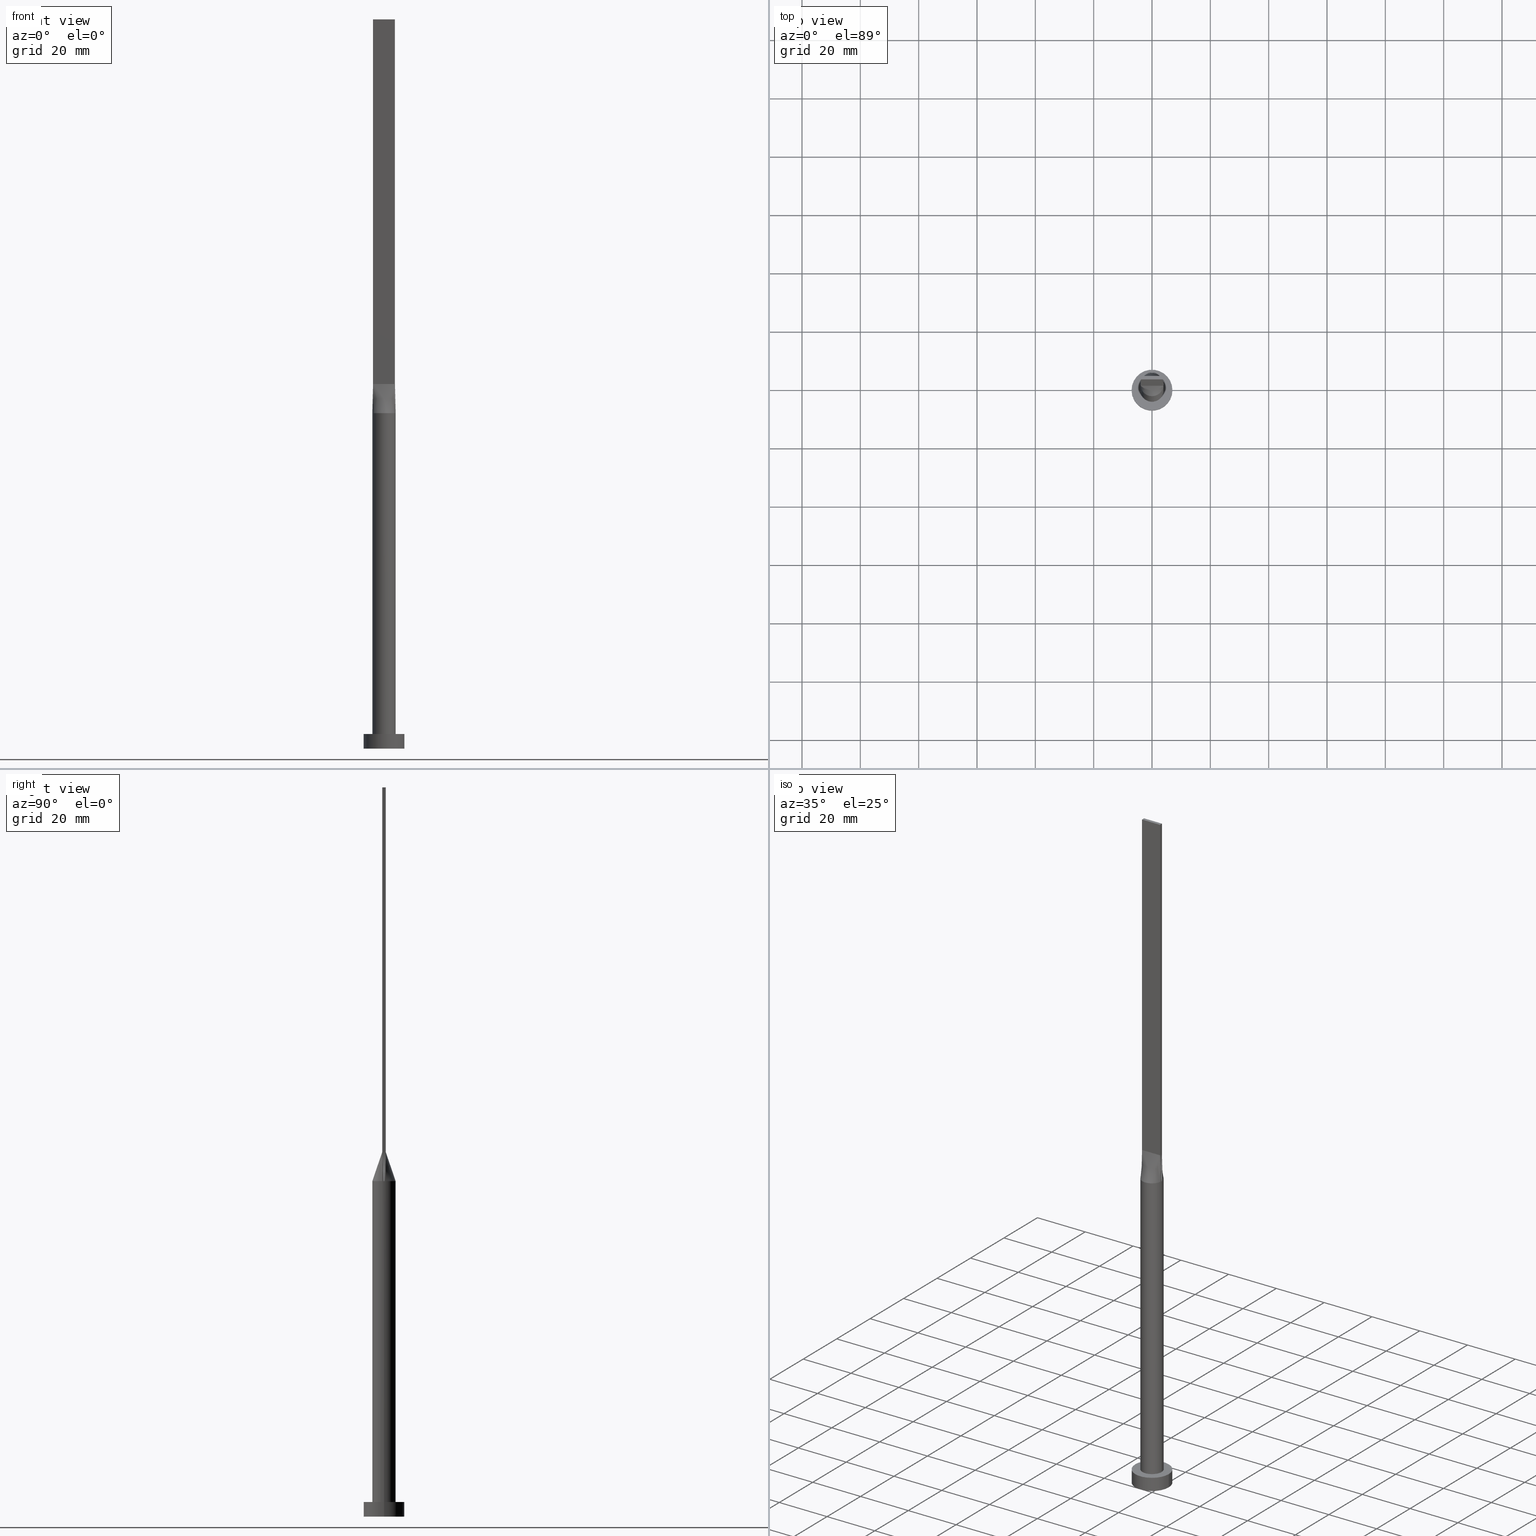
[diagram: canonical four-view strip — front | top / right | iso, engineering-drawing reading convention]
A machine part, canonical four-view strip (front | top / right | iso — engineering-drawing reading convention). The complete STEP part file that produces these views, byte-faithful:
ISO-10303-21;
HEADER;
FILE_DESCRIPTION (( 'STEP AP203' ),
    '1' );
FILE_NAME ('1744.STEP',
    '2023-02-13T10:46:32',
    ( '' ),
    ( '' ),
    'SwSTEP 2.0',
    'SolidWorks 2019',
    '' );
FILE_SCHEMA (( 'CONFIG_CONTROL_DESIGN' ));
ENDSEC;

DATA;
#1 = CARTESIAN_POINT ( 'NONE',  ( -3.999842262273348048, -9.740943882706926662E-16, 115.0000000000000000 ) ) ;
#2 = CARTESIAN_POINT ( 'NONE',  ( -3.219262664220059023, -2.422342486356523050, 115.0000000000000142 ) ) ;
#3 = APPROVAL ( #277, 'NEUR�EN�' ) ;
#4 = DIRECTION ( 'NONE',  ( 0.000000000000000000, 1.000000000000000000, 0.000000000000000000 ) ) ;
#5 = APPLICATION_PROTOCOL_DEFINITION ( 'international standard', 'config_control_design', 1994, #491 ) ;
#6 = VERTEX_POINT ( 'NONE', #538 ) ;
#7 = CARTESIAN_POINT ( 'NONE',  ( 3.949762527666821565, 0.6319620044266899273, 115.0000000000000000 ) ) ;
#8 = VECTOR ( 'NONE', #413, 1000.000000000000000 ) ;
#9 = CC_DESIGN_SECURITY_CLASSIFICATION ( #406, ( #177 ) ) ;
#10 = CARTESIAN_POINT ( 'NONE',  ( -2.127794970397209884, 3.430476893735948440, 115.0000000000000000 ) ) ;
#11 = DATE_AND_TIME ( #240, #157 ) ;
#12 = ADVANCED_FACE ( 'NONE', ( #232 ), #324, .F. ) ;
#13 = PLANE ( 'NONE',  #309 ) ;
#14 = CARTESIAN_POINT ( 'NONE',  ( -3.219262664220059023, 2.422342486356523938, 115.0000000000000000 ) ) ;
#15 = ADVANCED_FACE ( 'NONE', ( #188 ), #13, .T. ) ;
#16 = EDGE_CURVE ( 'NONE', #171, #32, #221, .T. ) ;
#17 = CARTESIAN_POINT ( 'NONE',  ( -3.949762527666821565, 0.6319620044266903713, 115.0000000000000000 ) ) ;
#18 = DIRECTION ( 'NONE',  ( 0.000000000000000000, 0.000000000000000000, 1.000000000000000000 ) ) ;
#19 = LINE ( 'NONE', #476, #260 ) ;
#20 = CARTESIAN_POINT ( 'NONE',  ( 3.750000000000000000, 0.6000000000000001998, 250.0000000000000000 ) ) ;
#21 = DIRECTION ( 'NONE',  ( 0.000000000000000000, 0.000000000000000000, 1.000000000000000000 ) ) ;
#22 = CARTESIAN_POINT ( 'NONE',  ( -7.000000000000000000, 0.000000000000000000, 5.000000000000000000 ) ) ;
#23 = CARTESIAN_POINT ( 'NONE',  ( 3.849881263833410561, 0.6159810022133449525, 120.0000000000000000 ) ) ;
#24 = VERTEX_POINT ( 'NONE', #497 ) ;
#25 = LOCAL_TIME ( 11, 46, 32.00000000000000000, #111 ) ;
#26 = DIRECTION ( 'NONE',  ( 1.000000000000000000, 0.000000000000000000, 0.000000000000000000 ) ) ;
#27 = DATE_AND_TIME ( #74, #112 ) ;
#28 = DIRECTION ( 'NONE',  ( -0.000000000000000000, 0.000000000000000000, -1.000000000000000000 ) ) ;
#29 = B_SPLINE_SURFACE_WITH_KNOTS ( 'NONE', 3, 1, ( 
 ( #396, #424 ),
 ( #568, #155 ),
 ( #248, #245 ),
 ( #473, #468 ),
 ( #427, #511 ),
 ( #195, #429 ) ),
 .UNSPECIFIED., .F., .F., .F.,
 ( 4, 2, 4 ),
 ( 2, 2 ),
 ( 0.000000000000000000, 0.5000000000000000000, 1.000000000000000000 ),
 ( 0.000000000000000000, 1.000000000000000000 ),
 .UNSPECIFIED. ) ;
#30 = CARTESIAN_POINT ( 'NONE',  ( 0.5684794080625145130, 4.000000000000000000, 114.9999999999999858 ) ) ;
#31 = CARTESIAN_POINT ( 'NONE',  ( 0.000000000000000000, 0.000000000000000000, 5.000000000000000000 ) ) ;
#32 = VERTEX_POINT ( 'NONE', #92 ) ;
#33 = DIRECTION ( 'NONE',  ( 0.000000000000000000, 0.000000000000000000, 1.000000000000000000 ) ) ;
#34 = ORIENTED_EDGE ( 'NONE', *, *, #311, .F. ) ;
#35 = LOCAL_TIME ( 11, 46, 32.00000000000000000, #369 ) ;
#36 = ORIENTED_EDGE ( 'NONE', *, *, #535, .T. ) ;
#37 = EDGE_LOOP ( 'NONE', ( #493, #36, #330, #77 ) ) ;
#38 = CARTESIAN_POINT ( 'NONE',  ( -3.800365609718892923, -1.311488165564685726, 115.0000000000000000 ) ) ;
#39 = ORIENTED_EDGE ( 'NONE', *, *, #204, .T. ) ;
#40 = CARTESIAN_POINT ( 'NONE',  ( 4.000000000000000000, 4.898587196589412829E-16, 115.0000000000000000 ) ) ;
#41 = VECTOR ( 'NONE', #318, 1000.000000000000000 ) ;
#42 = FACE_OUTER_BOUND ( 'NONE', #411, .T. ) ;
#43 = AXIS2_PLACEMENT_3D ( 'NONE', #426, #18, #161 ) ;
#44 = ORIENTED_EDGE ( 'NONE', *, *, #198, .F. ) ;
#45 = EDGE_LOOP ( 'NONE', ( #113, #432, #579, #398 ) ) ;
#46 = CARTESIAN_POINT ( 'NONE',  ( -1.249999999999997558, -0.5999999999999994227, 125.0000000000000000 ) ) ;
#47 = CARTESIAN_POINT ( 'NONE',  ( -3.750000000000000000, 0.6000000000000001998, 125.0000000000000000 ) ) ;
#48 = CARTESIAN_POINT ( 'NONE',  ( 3.999684524546696540, -0.2119768420469393122, 115.0000000000000000 ) ) ;
#49 = CARTESIAN_POINT ( 'NONE',  ( 3.749999999999999556, -0.4000000000000017986, 125.0000000000000000 ) ) ;
#50 = ORIENTED_EDGE ( 'NONE', *, *, #329, .F. ) ;
#51 = CARTESIAN_POINT ( 'NONE',  ( -0.5684794080625158452, 3.999999999999999112, 115.0000000000000000 ) ) ;
#52 = PERSON_AND_ORGANIZATION ( #559, #519 ) ;
#53 = AXIS2_PLACEMENT_3D ( 'NONE', #390, #121, #72 ) ;
#54 = CARTESIAN_POINT ( 'NONE',  ( 3.437499999999999556, 0.6000000000000001998, 125.0000000000000000 ) ) ;
#55 = PERSON_AND_ORGANIZATION ( #559, #519 ) ;
#56 = EDGE_CURVE ( 'NONE', #543, #173, #270, .T. ) ;
#57 = EDGE_CURVE ( 'NONE', #24, #543, #98, .T. ) ;
#58 = CARTESIAN_POINT ( 'NONE',  ( -3.750000000000000000, 0.6000000000000001998, 125.0000000000000000 ) ) ;
#59 = CARTESIAN_POINT ( 'NONE',  ( -0.6249999999999978906, -0.5999999999999994227, 125.0000000000000000 ) ) ;
#60 = ORIENTED_EDGE ( 'NONE', *, *, #436, .T. ) ;
#61 = LINE ( 'NONE', #385, #574 ) ;
#62 = DIRECTION ( 'NONE',  ( -1.000000000000000000, 0.000000000000000000, 0.000000000000000000 ) ) ;
#63 = CARTESIAN_POINT ( 'NONE',  ( 3.750000000000000000, -0.5999999999999997558, 125.0000000000000000 ) ) ;
#64 = AXIS2_PLACEMENT_3D ( 'NONE', #189, #372, #553 ) ;
#65 = EDGE_CURVE ( 'NONE', #237, #145, #19, .T. ) ;
#66 = CARTESIAN_POINT ( 'NONE',  ( 3.897760447583618948, 0.9569750049467118380, 115.0000000000000000 ) ) ;
#67 = FACE_OUTER_BOUND ( 'NONE', #355, .T. ) ;
#68 = DIRECTION ( 'NONE',  ( 0.000000000000000000, -1.000000000000000000, 0.000000000000000000 ) ) ;
#69 = ORIENTED_EDGE ( 'NONE', *, *, #56, .T. ) ;
#70 = CARTESIAN_POINT ( 'NONE',  ( 3.999842262273348936, 9.852009208038395466E-16, 115.0000000000000000 ) ) ;
#71 = PERSON_AND_ORGANIZATION ( #559, #519 ) ;
#72 = DIRECTION ( 'NONE',  ( -1.000000000000000000, 0.000000000000000000, 0.000000000000000000 ) ) ;
#73 = EDGE_LOOP ( 'NONE', ( #374, #34, #545, #228 ) ) ;
#74 = CALENDAR_DATE ( 2023, 13, 2 ) ;
#75 = ADVANCED_FACE ( 'NONE', ( #159 ), #298, .F. ) ;
#76 = CARTESIAN_POINT ( 'NONE',  ( -3.750000000000000000, 0.6000000000000001998, 250.0000000000000000 ) ) ;
#77 = ORIENTED_EDGE ( 'NONE', *, *, #117, .T. ) ;
#78 = ORIENTED_EDGE ( 'NONE', *, *, #321, .F. ) ;
#79 = AXIS2_PLACEMENT_3D ( 'NONE', #356, #125, #488 ) ;
#80 = CARTESIAN_POINT ( 'NONE',  ( -1.134810363096319996, 3.874001625491799938, 115.0000000000000284 ) ) ;
#81 = VERTEX_POINT ( 'NONE', #433 ) ;
#82 = CARTESIAN_POINT ( 'NONE',  ( 0.000000000000000000, 0.000000000000000000, 115.0000000000000000 ) ) ;
#83 = DESIGN_CONTEXT ( 'detailed design', #491, 'design' ) ;
#84 = CARTESIAN_POINT ( 'NONE',  ( 0.000000000000000000, 0.000000000000000000, 115.0000000000000000 ) ) ;
#85 = AXIS2_PLACEMENT_3D ( 'NONE', #107, #288, #62 ) ;
#86 = EDGE_LOOP ( 'NONE', ( #69, #44, #366, #60 ) ) ;
#87 = VERTEX_POINT ( 'NONE', #285 ) ;
#88 = CARTESIAN_POINT ( 'NONE',  ( -3.750000000000000000, -0.5999999999999993117, 250.0000000000000000 ) ) ;
#89 = LINE ( 'NONE', #180, #393 ) ;
#90 =( NAMED_UNIT ( * ) PLANE_ANGLE_UNIT ( ) SI_UNIT ( $, .RADIAN. ) );
#91 = FACE_OUTER_BOUND ( 'NONE', #37, .T. ) ;
#92 = CARTESIAN_POINT ( 'NONE',  ( 3.750000000000000000, -0.5999999999999997558, 250.0000000000000000 ) ) ;
#93 = LINE ( 'NONE', #280, #122 ) ;
#94 = CIRCLE ( 'NONE', #79, 4.000000000000000000 ) ;
#95 = ORIENTED_EDGE ( 'NONE', *, *, #412, .T. ) ;
#96 = CARTESIAN_POINT ( 'NONE',  ( 2.553164211252348270, -3.116528153703943094, 114.9999999999999858 ) ) ;
#97 = CARTESIAN_POINT ( 'NONE',  ( 3.750000000000000000, -0.5999999999999997558, 125.0000000000000000 ) ) ;
#98 = LINE ( 'NONE', #337, #269 ) ;
#99 = CARTESIAN_POINT ( 'NONE',  ( 3.750000000000000000, -0.5999999999999997558, 125.0000000000000000 ) ) ;
#100 = PERSON_AND_ORGANIZATION ( #559, #519 ) ;
#101 = CARTESIAN_POINT ( 'NONE',  ( 0.3124999999999990563, 0.6000000000000000888, 125.0000000000000000 ) ) ;
#102 = CARTESIAN_POINT ( 'NONE',  ( -1.562499999999999556, 0.6000000000000000888, 125.0000000000000000 ) ) ;
#103 = DATE_AND_TIME ( #554, #261 ) ;
#104 = DIRECTION ( 'NONE',  ( 1.000000000000000000, 0.000000000000000000, -0.000000000000000000 ) ) ;
#105 = DIRECTION ( 'NONE',  ( -0.000000000000000000, -0.000000000000000000, -1.000000000000000000 ) ) ;
#106 = CARTESIAN_POINT ( 'NONE',  ( 3.461914487322979017, 2.043998057340944197, 114.9999999999999716 ) ) ;
#107 = CARTESIAN_POINT ( 'NONE',  ( 0.000000000000000000, 0.000000000000000000, 5.000000000000000000 ) ) ;
#108 = DATE_AND_TIME ( #515, #25 ) ;
#109 = EDGE_CURVE ( 'NONE', #128, #81, #254, .T. ) ;
#110 = DIRECTION ( 'NONE',  ( 0.000000000000000000, 0.000000000000000000, 1.000000000000000000 ) ) ;
#111 = COORDINATED_UNIVERSAL_TIME_OFFSET ( 1, 0, .AHEAD. ) ;
#112 = LOCAL_TIME ( 11, 46, 32.00000000000000000, #522 ) ;
#113 = ORIENTED_EDGE ( 'NONE', *, *, #212, .T. ) ;
#114 = CARTESIAN_POINT ( 'NONE',  ( 2.553164211252348714, 3.116528153703943538, 115.0000000000000000 ) ) ;
#115 = CYLINDRICAL_SURFACE ( 'NONE', #53, 4.000000000000000000 ) ;
#116 = EDGE_LOOP ( 'NONE', ( #531, #206, #453, #446 ) ) ;
#117 = EDGE_CURVE ( 'NONE', #173, #87, #61, .T. ) ;
#118 = CARTESIAN_POINT ( 'NONE',  ( 2.127794970397208107, 3.430476893735948885, 114.9999999999999858 ) ) ;
#119 = CARTESIAN_POINT ( 'NONE',  ( 3.950116941581656604, -0.6320178829360038053, 115.0000000000000000 ) ) ;
#120 = CC_DESIGN_PERSON_AND_ORGANIZATION_ASSIGNMENT ( #52, #417, ( #484 ) ) ;
#121 = DIRECTION ( 'NONE',  ( -0.000000000000000000, -0.000000000000000000, -1.000000000000000000 ) ) ;
#122 = VECTOR ( 'NONE', #328, 1000.000000000000000 ) ;
#123 = AXIS2_PLACEMENT_3D ( 'NONE', #84, #490, #575 ) ;
#124 = ORIENTED_EDGE ( 'NONE', *, *, #168, .F. ) ;
#125 = DIRECTION ( 'NONE',  ( 0.000000000000000000, 0.000000000000000000, 1.000000000000000000 ) ) ;
#126 = EDGE_LOOP ( 'NONE', ( #213, #226, #273, #39 ) ) ;
#127 = MECHANICAL_CONTEXT ( 'NONE', #308, 'mechanical' ) ;
#128 = VERTEX_POINT ( 'NONE', #70 ) ;
#129 = CARTESIAN_POINT ( 'NONE',  ( 0.000000000000000000, 0.000000000000000000, 0.000000000000000000 ) ) ;
#130 = ADVANCED_FACE ( 'NONE', ( #341 ), #201, .F. ) ;
#131 = ORIENTED_EDGE ( 'NONE', *, *, #535, .F. ) ;
#132 = ADVANCED_FACE ( 'NONE', ( #420 ), #29, .T. ) ;
#133 = CARTESIAN_POINT ( 'NONE',  ( 7.000000000000000000, 8.572527594031473190E-16, 0.000000000000000000 ) ) ;
#134 = CARTESIAN_POINT ( 'NONE',  ( -3.750000000000000000, -0.5999999999999993117, 250.0000000000000000 ) ) ;
#135 = CARTESIAN_POINT ( 'NONE',  ( 3.800365609718893367, 1.311488165564687058, 115.0000000000000142 ) ) ;
#136 = PERSON_AND_ORGANIZATION ( #559, #519 ) ;
#137 = ORIENTED_EDGE ( 'NONE', *, *, #200, .F. ) ;
#138 = CARTESIAN_POINT ( 'NONE',  ( -3.124999999999999112, -0.5999999999999993117, 125.0000000000000000 ) ) ;
#139 = VECTOR ( 'NONE', #306, 1000.000000000000000 ) ;
#140 = CARTESIAN_POINT ( 'NONE',  ( 3.983043858920071845, -0.4239536840938781248, 115.0000000000000000 ) ) ;
#141 = CARTESIAN_POINT ( 'NONE',  ( 0.5684794080625145130, 4.000000000000000000, 114.9999999999999858 ) ) ;
#142 = PRODUCT_RELATED_PRODUCT_CATEGORY ( 'detail', '', ( #484 ) ) ;
#143 = ORIENTED_EDGE ( 'NONE', *, *, #109, .T. ) ;
#144 = CARTESIAN_POINT ( 'NONE',  ( 1.562499999999999556, 0.6000000000000000888, 125.0000000000000000 ) ) ;
#145 = VERTEX_POINT ( 'NONE', #344 ) ;
#146 = LINE ( 'NONE', #292, #147 ) ;
#147 = VECTOR ( 'NONE', #477, 1000.000000000000000 ) ;
#148 = CARTESIAN_POINT ( 'NONE',  ( -3.750000000000000000, -0.5999999999999993117, 250.0000000000000000 ) ) ;
#149 = APPROVAL_STATUS ( 'not_yet_approved' ) ;
#150 = EDGE_LOOP ( 'NONE', ( #50, #305, #263, #343 ) ) ;
#151 = CARTESIAN_POINT ( 'NONE',  ( 0.000000000000000000, 0.000000000000000000, 115.0000000000000000 ) ) ;
#152 = DIRECTION ( 'NONE',  ( -0.000000000000000000, -0.000000000000000000, -1.000000000000000000 ) ) ;
#153 = LINE ( 'NONE', #431, #323 ) ;
#154 = ORIENTED_EDGE ( 'NONE', *, *, #495, .F. ) ;
#155 = CARTESIAN_POINT ( 'NONE',  ( -3.749999999999999556, 0.3999999999999998557, 125.0000000000000000 ) ) ;
#156 = DIRECTION ( 'NONE',  ( 0.000000000000000000, -0.000000000000000000, -1.000000000000000000 ) ) ;
#157 = LOCAL_TIME ( 11, 46, 32.00000000000000000, #382 ) ;
#158 = EDGE_LOOP ( 'NONE', ( #316, #295, #440, #290, #310 ) ) ;
#159 = FACE_OUTER_BOUND ( 'NONE', #578, .T. ) ;
#160 = PERSON_AND_ORGANIZATION ( #559, #519 ) ;
#161 = DIRECTION ( 'NONE',  ( 1.000000000000000000, 0.000000000000000000, 0.000000000000000000 ) ) ;
#162 = ORIENTED_EDGE ( 'NONE', *, *, #504, .F. ) ;
#163 = CARTESIAN_POINT ( 'NONE',  ( 0.000000000000000000, 0.000000000000000000, 0.000000000000000000 ) ) ;
#164 = CARTESIAN_POINT ( 'NONE',  ( -4.000000000000000000, 0.000000000000000000, 115.0000000000000000 ) ) ;
#165 = APPROVAL_ROLE ( '' ) ;
#166 = ORIENTED_EDGE ( 'NONE', *, *, #353, .F. ) ;
#167 = VERTEX_POINT ( 'NONE', #190 ) ;
#168 = EDGE_CURVE ( 'NONE', #6, #167, #231, .T. ) ;
#169 = ORIENTED_EDGE ( 'NONE', *, *, #264, .F. ) ;
#170 = AXIS2_PLACEMENT_3D ( 'NONE', #76, #435, #28 ) ;
#171 = VERTEX_POINT ( 'NONE', #148 ) ;
#172 = DIRECTION ( 'NONE',  ( 1.000000000000000000, 0.000000000000000000, 0.000000000000000000 ) ) ;
#173 = VERTEX_POINT ( 'NONE', #388 ) ;
#174 = EDGE_CURVE ( 'NONE', #81, #24, #362, .T. ) ;
#175 = CARTESIAN_POINT ( 'NONE',  ( -3.437499999999999556, -0.5999999999999993117, 125.0000000000000000 ) ) ;
#176 = VECTOR ( 'NONE', #503, 1000.000000000000000 ) ;
#177 = PRODUCT_DEFINITION_FORMATION_WITH_SPECIFIED_SOURCE ( 'LIBOVOLN�', '', #484, .NOT_KNOWN. ) ;
#178 = VERTEX_POINT ( 'NONE', #1 ) ;
#179 = CARTESIAN_POINT ( 'NONE',  ( -3.750000000000000000, 0.6000000000000001998, 250.0000000000000000 ) ) ;
#180 = CARTESIAN_POINT ( 'NONE',  ( 3.750000000000000000, -0.5999999999999997558, 250.0000000000000000 ) ) ;
#181 = LINE ( 'NONE', #368, #176 ) ;
#182 = DATE_TIME_ROLE ( 'creation_date' ) ;
#183 = CC_DESIGN_APPROVAL ( #334, ( #406 ) ) ;
#184 = CARTESIAN_POINT ( 'NONE',  ( 2.127794970397208107, 3.430476893735948885, 114.9999999999999858 ) ) ;
#185 = CARTESIAN_POINT ( 'NONE',  ( 2.553164211252348714, 3.116528153703943538, 115.0000000000000000 ) ) ;
#186 = PERSON_AND_ORGANIZATION_ROLE ( 'creator' ) ;
#187 = CARTESIAN_POINT ( 'NONE',  ( -3.949762527666821565, -0.6319620044266894832, 115.0000000000000000 ) ) ;
#188 = FACE_OUTER_BOUND ( 'NONE', #126, .T. ) ;
#189 = CARTESIAN_POINT ( 'NONE',  ( 0.000000000000000000, 0.000000000000000000, 115.0000000000000000 ) ) ;
#190 = CARTESIAN_POINT ( 'NONE',  ( 4.000000000000000000, 4.898587196589412829E-16, 5.000000000000000000 ) ) ;
#191 = LINE ( 'NONE', #336, #332 ) ;
#192 = CIRCLE ( 'NONE', #207, 7.000000000000000000 ) ;
#193 = VECTOR ( 'NONE', #253, 1000.000000000000000 ) ;
#194 = CARTESIAN_POINT ( 'NONE',  ( 3.800365609718893367, -1.311488165564686614, 114.9999999999999858 ) ) ;
#195 = CARTESIAN_POINT ( 'NONE',  ( -3.949762527666821565, -0.6319620044266894832, 115.0000000000000000 ) ) ;
#196 = FACE_OUTER_BOUND ( 'NONE', #242, .T. ) ;
#197 = DIRECTION ( 'NONE',  ( 0.000000000000000000, 0.000000000000000000, 1.000000000000000000 ) ) ;
#198 = EDGE_CURVE ( 'NONE', #171, #173, #378, .T. ) ;
#199 = FACE_OUTER_BOUND ( 'NONE', #86, .T. ) ;
#200 = EDGE_CURVE ( 'NONE', #377, #128, #564, .T. ) ;
#201 = PLANE ( 'NONE',  #384 ) ;
#202 = ORIENTED_EDGE ( 'NONE', *, *, #109, .F. ) ;
#203 = CARTESIAN_POINT ( 'NONE',  ( -0.5684794080625158452, 3.999999999999999112, 115.0000000000000000 ) ) ;
#204 = EDGE_CURVE ( 'NONE', #32, #237, #89, .T. ) ;
#205 = DIRECTION ( 'NONE',  ( 1.000000000000000000, 0.000000000000000000, 0.000000000000000000 ) ) ;
#206 = ORIENTED_EDGE ( 'NONE', *, *, #436, .F. ) ;
#207 = AXIS2_PLACEMENT_3D ( 'NONE', #441, #33, #205 ) ;
#208 = FACE_BOUND ( 'NONE', #313, .T. ) ;
#209 = APPLICATION_PROTOCOL_DEFINITION ( 'international standard', 'config_control_design', 1994, #308 ) ;
#210 = ORIENTED_EDGE ( 'NONE', *, *, #200, .T. ) ;
#211 = DIRECTION ( 'NONE',  ( 0.000000000000000000, 0.000000000000000000, 1.000000000000000000 ) ) ;
#212 = EDGE_CURVE ( 'NONE', #438, #145, #93, .T. ) ;
#213 = ORIENTED_EDGE ( 'NONE', *, *, #471, .T. ) ;
#214 = CARTESIAN_POINT ( 'NONE',  ( -2.499999999999998668, -0.5999999999999994227, 125.0000000000000000 ) ) ;
#215 = EDGE_CURVE ( 'NONE', #459, #171, #181, .T. ) ;
#216 = PLANE ( 'NONE',  #218 ) ;
#217 = CARTESIAN_POINT ( 'NONE',  ( 0.000000000000000000, 0.000000000000000000, 0.000000000000000000 ) ) ;
#218 = AXIS2_PLACEMENT_3D ( 'NONE', #31, #404, #485 ) ;
#219 = VECTOR ( 'NONE', #537, 1000.000000000000000 ) ;
#220 = DIRECTION ( 'NONE',  ( -0.000000000000000000, -0.000000000000000000, -1.000000000000000000 ) ) ;
#221 = LINE ( 'NONE', #134, #41 ) ;
#222 = CARTESIAN_POINT ( 'NONE',  ( 3.897760447583618948, 0.9569750049467118380, 115.0000000000000000 ) ) ;
#223 = ORIENTED_EDGE ( 'NONE', *, *, #376, .F. ) ;
#224 = CARTESIAN_POINT ( 'NONE',  ( 0.6250000000000017764, -0.5999999999999995337, 125.0000000000000000 ) ) ;
#225 = CARTESIAN_POINT ( 'NONE',  ( -0.3125000000000007216, 0.6000000000000000888, 125.0000000000000000 ) ) ;
#226 = ORIENTED_EDGE ( 'NONE', *, *, #215, .T. ) ;
#227 = CARTESIAN_POINT ( 'NONE',  ( 3.219262664220059023, -2.422342486356523938, 115.0000000000000000 ) ) ;
#228 = ORIENTED_EDGE ( 'NONE', *, *, #198, .T. ) ;
#229 = CARTESIAN_POINT ( 'NONE',  ( 3.749999999999999556, 0.3999999999999981348, 125.0000000000000000 ) ) ;
#230 = PERSON_AND_ORGANIZATION_ROLE ( 'creator' ) ;
#231 = CIRCLE ( 'NONE', #322, 4.000000000000000000 ) ;
#232 = FACE_OUTER_BOUND ( 'NONE', #73, .T. ) ;
#233 = CARTESIAN_POINT ( 'NONE',  ( -1.134810363096319996, 3.874001625491799938, 115.0000000000000284 ) ) ;
#234 = DIRECTION ( 'NONE',  ( -1.000000000000000000, 5.782411586589357392E-17, 0.000000000000000000 ) ) ;
#235 = CARTESIAN_POINT ( 'NONE',  ( 3.124999999999999556, 0.6000000000000001998, 125.0000000000000000 ) ) ;
#236 = SECURITY_CLASSIFICATION_LEVEL ( 'unclassified' ) ;
#237 = VERTEX_POINT ( 'NONE', #466 ) ;
#238 = DIRECTION ( 'NONE',  ( -0.01997216621675833650, -0.003195546594681206685, -0.9997954296047624201 ) ) ;
#239 = CYLINDRICAL_SURFACE ( 'NONE', #85, 7.000000000000000000 ) ;
#240 = CALENDAR_DATE ( 2023, 13, 2 ) ;
#241 = CARTESIAN_POINT ( 'NONE',  ( 2.187500000000000888, -0.5999999999999996447, 125.0000000000000000 ) ) ;
#242 = EDGE_LOOP ( 'NONE', ( #419, #137, #223, #162, #524, #481 ) ) ;
#243 = DIRECTION ( 'NONE',  ( -0.000000000000000000, -0.000000000000000000, -1.000000000000000000 ) ) ;
#244 = DIRECTION ( 'NONE',  ( 1.000000000000000000, 0.000000000000000000, 0.000000000000000000 ) ) ;
#245 = CARTESIAN_POINT ( 'NONE',  ( -3.749999999999999556, 0.1999999999999997335, 125.0000000000000000 ) ) ;
#246 = LINE ( 'NONE', #22, #345 ) ;
#247 = DIRECTION ( 'NONE',  ( -0.01997216621675833650, -0.003195546594681163317, 0.9997954296047624201 ) ) ;
#248 = CARTESIAN_POINT ( 'NONE',  ( -3.999684524546696096, 0.2119768420469390069, 115.0000000000000000 ) ) ;
#249 = ADVANCED_FACE ( 'NONE', ( #266 ), #444, .T. ) ;
#250 = SHAPE_DEFINITION_REPRESENTATION ( #527, #532 ) ;
#251 = CARTESIAN_POINT ( 'NONE',  ( 3.949762527666821565, -0.6319620044266891501, 115.0000000000000000 ) ) ;
#252 = ORIENTED_EDGE ( 'NONE', *, *, #445, .F. ) ;
#253 = DIRECTION ( 'NONE',  ( -0.01997216621675833650, 0.003195546594681130791, 0.9997954296047624201 ) ) ;
#254 = CIRCLE ( 'NONE', #423, 4.000000000000000000 ) ;
#255 = AXIS2_PLACEMENT_3D ( 'NONE', #526, #562, #560 ) ;
#256 = CARTESIAN_POINT ( 'NONE',  ( -2.553164211252348714, 3.116528153703943538, 115.0000000000000000 ) ) ;
#257 = FACE_OUTER_BOUND ( 'NONE', #150, .T. ) ;
#258 = DIRECTION ( 'NONE',  ( 0.000000000000000000, 0.000000000000000000, 1.000000000000000000 ) ) ;
#259 = DIRECTION ( 'NONE',  ( 1.000000000000000000, 0.000000000000000000, 0.000000000000000000 ) ) ;
#260 = VECTOR ( 'NONE', #243, 1000.000000000000000 ) ;
#261 = LOCAL_TIME ( 11, 46, 32.00000000000000000, #507 ) ;
#262 = ADVANCED_FACE ( 'NONE', ( #42 ), #573, .T. ) ;
#263 = ORIENTED_EDGE ( 'NONE', *, *, #321, .T. ) ;
#264 = EDGE_CURVE ( 'NONE', #145, #543, #146, .T. ) ;
#265 = CARTESIAN_POINT ( 'NONE',  ( -7.000000000000000000, 0.000000000000000000, 5.000000000000000000 ) ) ;
#266 = FACE_OUTER_BOUND ( 'NONE', #363, .T. ) ;
#267 = ORIENTED_EDGE ( 'NONE', *, *, #353, .T. ) ;
#268 = CARTESIAN_POINT ( 'NONE',  ( -3.461914487322979905, -2.043998057340941976, 115.0000000000000142 ) ) ;
#269 = VECTOR ( 'NONE', #566, 1000.000000000000000 ) ;
#270 = LINE ( 'NONE', #47, #434 ) ;
#271 = CARTESIAN_POINT ( 'NONE',  ( 1.249999999999999778, 0.6000000000000000888, 125.0000000000000000 ) ) ;
#272 = APPROVAL_ROLE ( '' ) ;
#273 = ORIENTED_EDGE ( 'NONE', *, *, #16, .T. ) ;
#274 = APPROVAL ( #510, 'NEUR�EN�' ) ;
#275 = CARTESIAN_POINT ( 'NONE',  ( -1.562499999999998002, -0.5999999999999994227, 125.0000000000000000 ) ) ;
#276 = CARTESIAN_POINT ( 'NONE',  ( 3.749999999999999556, 0.1999999999999970968, 125.0000000000000000 ) ) ;
#277 = APPROVAL_STATUS ( 'not_yet_approved' ) ;
#278 = LINE ( 'NONE', #365, #219 ) ;
#279 = EDGE_LOOP ( 'NONE', ( #95, #487 ) ) ;
#280 = CARTESIAN_POINT ( 'NONE',  ( 3.750000000000000000, 0.6000000000000001998, 125.0000000000000000 ) ) ;
#281 = DIRECTION ( 'NONE',  ( -0.000000000000000000, -0.000000000000000000, -1.000000000000000000 ) ) ;
#282 = ORIENTED_EDGE ( 'NONE', *, *, #430, .T. ) ;
#283 = CARTESIAN_POINT ( 'NONE',  ( -2.187499999999999556, 0.6000000000000000888, 125.0000000000000000 ) ) ;
#284 = DATE_AND_TIME ( #458, #35 ) ;
#285 = CARTESIAN_POINT ( 'NONE',  ( -3.950111798046394007, -0.6320171791297864994, 115.0000000000000000 ) ) ;
#286 = CARTESIAN_POINT ( 'NONE',  ( 7.000000000000000000, 8.572527594031473190E-16, 5.000000000000000000 ) ) ;
#287 = CARTESIAN_POINT ( 'NONE',  ( -2.127794970397209884, -3.430476893735947996, 114.9999999999999858 ) ) ;
#288 = DIRECTION ( 'NONE',  ( -0.000000000000000000, -0.000000000000000000, -1.000000000000000000 ) ) ;
#289 = APPROVAL_DATE_TIME ( #27, #334 ) ;
#290 = ORIENTED_EDGE ( 'NONE', *, *, #56, .F. ) ;
#291 = DIRECTION ( 'NONE',  ( -1.000000000000000000, 0.000000000000000000, 0.000000000000000000 ) ) ;
#292 = CARTESIAN_POINT ( 'NONE',  ( -3.750000000000000000, 0.6000000000000001998, 125.0000000000000000 ) ) ;
#293 = VECTOR ( 'NONE', #247, 1000.000000000000000 ) ;
#294 = LINE ( 'NONE', #516, #193 ) ;
#295 = ORIENTED_EDGE ( 'NONE', *, *, #504, .T. ) ;
#296 = CARTESIAN_POINT ( 'NONE',  ( 0.000000000000000000, 0.000000000000000000, 5.000000000000000000 ) ) ;
#297 = CARTESIAN_POINT ( 'NONE',  ( -3.437499999999999556, 0.6000000000000000888, 125.0000000000000000 ) ) ;
#298 = PLANE ( 'NONE',  #354 ) ;
#299 = PLANE ( 'NONE',  #170 ) ;
#300 = ORIENTED_EDGE ( 'NONE', *, *, #174, .T. ) ;
#301 = FACE_OUTER_BOUND ( 'NONE', #116, .T. ) ;
#302 = CIRCLE ( 'NONE', #387, 7.000000000000000000 ) ;
#303 = CARTESIAN_POINT ( 'NONE',  ( 0.000000000000000000, 0.000000000000000000, 115.0000000000000000 ) ) ;
#304 = UNCERTAINTY_MEASURE_WITH_UNIT (LENGTH_MEASURE( 1.000000000000000082E-05 ), #570, 'distance_accuracy_value', 'NONE');
#305 = ORIENTED_EDGE ( 'NONE', *, *, #412, .F. ) ;
#306 = DIRECTION ( 'NONE',  ( -0.000000000000000000, -0.000000000000000000, -1.000000000000000000 ) ) ;
#307 = CARTESIAN_POINT ( 'NONE',  ( -3.750000000000000000, -0.5999999999999993117, 125.0000000000000000 ) ) ;
#308 = APPLICATION_CONTEXT ( 'configuration controlled 3d designs of mechanical parts and assemblies' ) ;
#309 = AXIS2_PLACEMENT_3D ( 'NONE', #371, #381, #552 ) ;
#310 = ORIENTED_EDGE ( 'NONE', *, *, #57, .F. ) ;
#311 = EDGE_CURVE ( 'NONE', #32, #438, #191, .T. ) ;
#312 = DIRECTION ( 'NONE',  ( 1.000000000000000000, 0.000000000000000000, 0.000000000000000000 ) ) ;
#313 = EDGE_LOOP ( 'NONE', ( #124, #482 ) ) ;
#314 = CARTESIAN_POINT ( 'NONE',  ( -1.134810363096319996, -3.874001625491796830, 114.9999999999999858 ) ) ;
#315 = CARTESIAN_POINT ( 'NONE',  ( -3.950102418235696522, 0.6320155757311002320, 115.0000000000000000 ) ) ;
#316 = ORIENTED_EDGE ( 'NONE', *, *, #407, .T. ) ;
#317 = CARTESIAN_POINT ( 'NONE',  ( 1.134810363096319108, -3.874001625491798162, 115.0000000000000000 ) ) ;
#318 = DIRECTION ( 'NONE',  ( 1.000000000000000000, -5.782411586589357392E-17, 0.000000000000000000 ) ) ;
#319 = CARTESIAN_POINT ( 'NONE',  ( 2.499999999999999556, 0.6000000000000000888, 125.0000000000000000 ) ) ;
#320 = PERSON_AND_ORGANIZATION ( #559, #519 ) ;
#321 = EDGE_CURVE ( 'NONE', #437, #576, #246, .T. ) ;
#322 = AXIS2_PLACEMENT_3D ( 'NONE', #296, #21, #557 ) ;
#323 = VECTOR ( 'NONE', #342, 1000.000000000000000 ) ;
#324 = PLANE ( 'NONE',  #500 ) ;
#325 = CARTESIAN_POINT ( 'NONE',  ( 3.749999999999999556, -0.2000000000000028422, 125.0000000000000000 ) ) ;
#326 = PERSON_AND_ORGANIZATION ( #559, #519 ) ;
#327 = DIRECTION ( 'NONE',  ( 1.000000000000000000, 0.000000000000000000, 0.000000000000000000 ) ) ;
#328 = DIRECTION ( 'NONE',  ( -0.000000000000000000, 1.000000000000000000, -0.000000000000000000 ) ) ;
#329 = EDGE_CURVE ( 'NONE', #333, #450, #474, .T. ) ;
#330 = ORIENTED_EDGE ( 'NONE', *, *, #517, .F. ) ;
#331 = CARTESIAN_POINT ( 'NONE',  ( -1.249999999999999556, 0.6000000000000000888, 125.0000000000000000 ) ) ;
#332 = VECTOR ( 'NONE', #152, 1000.000000000000000 ) ;
#333 = VERTEX_POINT ( 'NONE', #286 ) ;
#334 = APPROVAL ( #149, 'NEUR�EN�' ) ;
#335 = VECTOR ( 'NONE', #220, 1000.000000000000000 ) ;
#336 = CARTESIAN_POINT ( 'NONE',  ( 3.750000000000000000, -0.5999999999999997558, 250.0000000000000000 ) ) ;
#337 = CARTESIAN_POINT ( 'NONE',  ( -3.849881263833410561, 0.6159810022133451746, 120.0000000000000000 ) ) ;
#338 = CARTESIAN_POINT ( 'NONE',  ( -3.800365609718893811, 1.311488165564686392, 114.9999999999999858 ) ) ;
#339 = DATE_TIME_ROLE ( 'classification_date' ) ;
#340 = ADVANCED_FACE ( 'NONE', ( #67 ), #239, .T. ) ;
#341 = FACE_OUTER_BOUND ( 'NONE', #45, .T. ) ;
#342 = DIRECTION ( 'NONE',  ( 1.000000000000000000, -5.782411586589357392E-17, 0.000000000000000000 ) ) ;
#343 = ORIENTED_EDGE ( 'NONE', *, *, #445, .T. ) ;
#344 = CARTESIAN_POINT ( 'NONE',  ( 3.750000000000000000, 0.6000000000000001998, 125.0000000000000000 ) ) ;
#345 = VECTOR ( 'NONE', #508, 1000.000000000000000 ) ;
#346 = CARTESIAN_POINT ( 'NONE',  ( -7.000000000000000000, 0.000000000000000000, 0.000000000000000000 ) ) ;
#347 = ORIENTED_EDGE ( 'NONE', *, *, #329, .T. ) ;
#348 = PLANE ( 'NONE',  #373 ) ;
#349 = ORIENTED_EDGE ( 'NONE', *, *, #448, .T. ) ;
#350 = CARTESIAN_POINT ( 'NONE',  ( -3.800365609718893811, 1.311488165564686392, 114.9999999999999858 ) ) ;
#351 = CC_DESIGN_PERSON_AND_ORGANIZATION_ASSIGNMENT ( #160, #389, ( #406 ) ) ;
#352 = CARTESIAN_POINT ( 'NONE',  ( 0.000000000000000000, 0.000000000000000000, 5.000000000000000000 ) ) ;
#353 = EDGE_CURVE ( 'NONE', #450, #576, #405, .T. ) ;
#354 = AXIS2_PLACEMENT_3D ( 'NONE', #163, #561, #104 ) ;
#355 = EDGE_LOOP ( 'NONE', ( #154, #347, #267, #78 ) ) ;
#356 = CARTESIAN_POINT ( 'NONE',  ( 0.000000000000000000, 0.000000000000000000, 5.000000000000000000 ) ) ;
#357 = FACE_OUTER_BOUND ( 'NONE', #408, .T. ) ;
#358 =( NAMED_UNIT ( * ) SI_UNIT ( $, .STERADIAN. ) SOLID_ANGLE_UNIT ( ) );
#359 = CC_DESIGN_PERSON_AND_ORGANIZATION_ASSIGNMENT ( #136, #414, ( #177 ) ) ;
#360 = B_SPLINE_SURFACE_WITH_KNOTS ( 'NONE', 3, 1, ( 
 ( #187, #307 ),
 ( #489, #175 ),
 ( #38, #138 ),
 ( #268, #214 ),
 ( #2, #492 ),
 ( #383, #275 ),
 ( #287, #46 ),
 ( #314, #59 ),
 ( #540, #447 ),
 ( #364, #409 ),
 ( #317, #224 ),
 ( #558, #536 ),
 ( #96, #456 ),
 ( #227, #241 ),
 ( #555, #421 ),
 ( #194, #478 ),
 ( #523, #480 ),
 ( #251, #63 ) ),
 .UNSPECIFIED., .F., .F., .F.,
 ( 4, 2, 2, 2, 2, 2, 2, 2, 4 ),
 ( 2, 2 ),
 ( 0.000000000000000000, 0.1250000000000000555, 0.2500000000000001110, 0.3750000000000001665, 0.5000000000000001110, 0.6250000000000001110, 0.7500000000000001110, 0.8750000000000000000, 1.000000000000000000 ),
 ( 0.000000000000000000, 1.000000000000000000 ),
 .UNSPECIFIED. ) ;
#361 = ORIENTED_EDGE ( 'NONE', *, *, #212, .F. ) ;
#362 = B_SPLINE_CURVE_WITH_KNOTS ( 'NONE', 3,
 ( #392, #66, #470, #106, #520, #114, #118, #439, #30, #203, #80, #525, #256, #399, #571, #350, #410, #315 ),
 .UNSPECIFIED., .F., .F.,
 ( 4, 2, 2, 2, 2, 2, 2, 2, 4 ),
 ( 0.000000000000000000, 0.1249999999999999445, 0.2499999999999998890, 0.3749999999999998335, 0.4999999999999997780, 0.6249999999999997780, 0.7499999999999998890, 0.8749999999999998890, 1.000000000000000000 ),
 .UNSPECIFIED. ) ;
#363 = EDGE_LOOP ( 'NONE', ( #210, #143, #370, #361, #131 ) ) ;
#364 = CARTESIAN_POINT ( 'NONE',  ( 0.5684794080625150681, -4.000000000000000888, 114.9999999999999716 ) ) ;
#365 = CARTESIAN_POINT ( 'NONE',  ( 3.750000000000000000, 0.6000000000000001998, 250.0000000000000000 ) ) ;
#366 = ORIENTED_EDGE ( 'NONE', *, *, #215, .F. ) ;
#367 = CC_DESIGN_PERSON_AND_ORGANIZATION_ASSIGNMENT ( #326, #186, ( #521 ) ) ;
#368 = CARTESIAN_POINT ( 'NONE',  ( -3.750000000000000000, 0.6000000000000001998, 250.0000000000000000 ) ) ;
#369 = COORDINATED_UNIVERSAL_TIME_OFFSET ( 1, 0, .AHEAD. ) ;
#370 = ORIENTED_EDGE ( 'NONE', *, *, #563, .T. ) ;
#371 = CARTESIAN_POINT ( 'NONE',  ( 0.000000000000000000, 0.000000000000000000, 250.0000000000000000 ) ) ;
#372 = DIRECTION ( 'NONE',  ( 0.000000000000000000, 0.000000000000000000, 1.000000000000000000 ) ) ;
#373 = AXIS2_PLACEMENT_3D ( 'NONE', #20, #68, #156 ) ;
#374 = ORIENTED_EDGE ( 'NONE', *, *, #517, .T. ) ;
#375 = CARTESIAN_POINT ( 'NONE',  ( 1.134810363096318664, 3.874001625491799050, 114.9999999999999858 ) ) ;
#376 = EDGE_CURVE ( 'NONE', #87, #377, #401, .T. ) ;
#377 = VERTEX_POINT ( 'NONE', #119 ) ;
#378 = LINE ( 'NONE', #548, #8 ) ;
#379 = MANIFOLD_SOLID_BREP ( 'P�idat vysunut�m5', #462 ) ;
#380 = EDGE_CURVE ( 'NONE', #178, #6, #530, .T. ) ;
#381 = DIRECTION ( 'NONE',  ( 0.000000000000000000, 0.000000000000000000, 1.000000000000000000 ) ) ;
#382 = COORDINATED_UNIVERSAL_TIME_OFFSET ( 1, 0, .AHEAD. ) ;
#383 = CARTESIAN_POINT ( 'NONE',  ( -2.553164211252349158, -3.116528153703943094, 115.0000000000000426 ) ) ;
#384 = AXIS2_PLACEMENT_3D ( 'NONE', #514, #291, #197 ) ;
#385 = CARTESIAN_POINT ( 'NONE',  ( -3.849881263833410561, -0.6159810022133443974, 120.0000000000000000 ) ) ;
#386 = ADVANCED_FACE ( 'NONE', ( #208, #529 ), #216, .T. ) ;
#387 = AXIS2_PLACEMENT_3D ( 'NONE', #464, #449, #327 ) ;
#388 = CARTESIAN_POINT ( 'NONE',  ( -3.750000000000000000, -0.5999999999999993117, 125.0000000000000000 ) ) ;
#389 = PERSON_AND_ORGANIZATION_ROLE ( 'classification_officer' ) ;
#390 = CARTESIAN_POINT ( 'NONE',  ( 0.000000000000000000, 0.000000000000000000, 115.0000000000000000 ) ) ;
#391 = CARTESIAN_POINT ( 'NONE',  ( -3.124999999999999112, 0.6000000000000000888, 125.0000000000000000 ) ) ;
#392 = CARTESIAN_POINT ( 'NONE',  ( 3.950097303404373150, 0.6320148730971616446, 115.0000000000000000 ) ) ;
#393 = VECTOR ( 'NONE', #4, 1000.000000000000000 ) ;
#394 = CARTESIAN_POINT ( 'NONE',  ( 7.000000000000000000, 8.572527594031473190E-16, 5.000000000000000000 ) ) ;
#395 = ORIENTED_EDGE ( 'NONE', *, *, #174, .F. ) ;
#396 = CARTESIAN_POINT ( 'NONE',  ( -3.949762527666821565, 0.6319620044266903713, 115.0000000000000000 ) ) ;
#397 = CARTESIAN_POINT ( 'NONE',  ( -3.461914487322979905, 2.043998057340944197, 115.0000000000000284 ) ) ;
#398 = ORIENTED_EDGE ( 'NONE', *, *, #311, .T. ) ;
#399 = CARTESIAN_POINT ( 'NONE',  ( -3.219262664220059023, 2.422342486356523938, 115.0000000000000000 ) ) ;
#400 = CYLINDRICAL_SURFACE ( 'NONE', #123, 4.000000000000000000 ) ;
#401 = CIRCLE ( 'NONE', #415, 4.000000000000000000 ) ;
#402 = APPROVAL_PERSON_ORGANIZATION ( #100, #3, #272 ) ;
#403 = CC_DESIGN_PERSON_AND_ORGANIZATION_ASSIGNMENT ( #55, #230, ( #177 ) ) ;
#404 = DIRECTION ( 'NONE',  ( 0.000000000000000000, 0.000000000000000000, 1.000000000000000000 ) ) ;
#405 = CIRCLE ( 'NONE', #483, 7.000000000000000000 ) ;
#406 = SECURITY_CLASSIFICATION ( '', '', #236 ) ;
#407 = EDGE_CURVE ( 'NONE', #24, #178, #556, .T. ) ;
#408 = EDGE_LOOP ( 'NONE', ( #202, #349, #282, #551, #513, #395 ) ) ;
#409 = CARTESIAN_POINT ( 'NONE',  ( 0.3125000000000016098, -0.5999999999999995337, 125.0000000000000000 ) ) ;
#410 = CARTESIAN_POINT ( 'NONE',  ( -3.897760447583618504, 0.9569750049467115049, 115.0000000000000142 ) ) ;
#411 = EDGE_LOOP ( 'NONE', ( #300, #518, #169, #442 ) ) ;
#412 = EDGE_CURVE ( 'NONE', #437, #333, #192, .T. ) ;
#413 = DIRECTION ( 'NONE',  ( -0.000000000000000000, -0.000000000000000000, -1.000000000000000000 ) ) ;
#414 = PERSON_AND_ORGANIZATION_ROLE ( 'design_supplier' ) ;
#415 = AXIS2_PLACEMENT_3D ( 'NONE', #303, #211, #172 ) ;
#416 = CARTESIAN_POINT ( 'NONE',  ( -0.6250000000000001110, 0.6000000000000000888, 125.0000000000000000 ) ) ;
#417 = PERSON_AND_ORGANIZATION_ROLE ( 'design_owner' ) ;
#418 = CARTESIAN_POINT ( 'NONE',  ( 2.187499999999999556, 0.6000000000000000888, 125.0000000000000000 ) ) ;
#419 = ORIENTED_EDGE ( 'NONE', *, *, #448, .F. ) ;
#420 = FACE_OUTER_BOUND ( 'NONE', #158, .T. ) ;
#421 = CARTESIAN_POINT ( 'NONE',  ( 2.500000000000000444, -0.5999999999999996447, 125.0000000000000000 ) ) ;
#422 = ADVANCED_FACE ( 'NONE', ( #357 ), #400, .T. ) ;
#423 = AXIS2_PLACEMENT_3D ( 'NONE', #151, #110, #26 ) ;
#424 = CARTESIAN_POINT ( 'NONE',  ( -3.750000000000000000, 0.6000000000000001998, 125.0000000000000000 ) ) ;
#425 = AXIS2_PLACEMENT_3D ( 'NONE', #352, #572, #244 ) ;
#426 = CARTESIAN_POINT ( 'NONE',  ( 0.000000000000000000, 0.000000000000000000, 115.0000000000000000 ) ) ;
#427 = CARTESIAN_POINT ( 'NONE',  ( -3.983043858920070956, -0.4239536840938767370, 115.0000000000000000 ) ) ;
#428 = LINE ( 'NONE', #23, #293 ) ;
#429 = CARTESIAN_POINT ( 'NONE',  ( -3.750000000000000000, -0.5999999999999993117, 125.0000000000000000 ) ) ;
#430 = EDGE_CURVE ( 'NONE', #167, #6, #94, .T. ) ;
#431 = CARTESIAN_POINT ( 'NONE',  ( -3.750000000000000000, -0.5999999999999993117, 125.0000000000000000 ) ) ;
#432 = ORIENTED_EDGE ( 'NONE', *, *, #65, .F. ) ;
#433 = CARTESIAN_POINT ( 'NONE',  ( 3.950097303404373150, 0.6320148730971616446, 115.0000000000000000 ) ) ;
#434 = VECTOR ( 'NONE', #502, 1000.000000000000000 ) ;
#435 = DIRECTION ( 'NONE',  ( 1.000000000000000000, 0.000000000000000000, -0.000000000000000000 ) ) ;
#436 = EDGE_CURVE ( 'NONE', #459, #543, #547, .T. ) ;
#437 = VERTEX_POINT ( 'NONE', #265 ) ;
#438 = VERTEX_POINT ( 'NONE', #97 ) ;
#439 = CARTESIAN_POINT ( 'NONE',  ( 1.134810363096318664, 3.874001625491799050, 114.9999999999999858 ) ) ;
#440 = ORIENTED_EDGE ( 'NONE', *, *, #117, .F. ) ;
#441 = CARTESIAN_POINT ( 'NONE',  ( 0.000000000000000000, 0.000000000000000000, 5.000000000000000000 ) ) ;
#442 = ORIENTED_EDGE ( 'NONE', *, *, #563, .F. ) ;
#443 = VECTOR ( 'NONE', #281, 1000.000000000000000 ) ;
#444 = B_SPLINE_SURFACE_WITH_KNOTS ( 'NONE', 3, 1, ( 
 ( #541, #99 ),
 ( #140, #49 ),
 ( #48, #325 ),
 ( #457, #276 ),
 ( #451, #229 ),
 ( #7, #546 ) ),
 .UNSPECIFIED., .F., .F., .F.,
 ( 4, 2, 4 ),
 ( 2, 2 ),
 ( 0.000000000000000000, 0.5000000000000000000, 1.000000000000000000 ),
 ( 0.000000000000000000, 1.000000000000000000 ),
 .UNSPECIFIED. ) ;
#445 = EDGE_CURVE ( 'NONE', #576, #450, #302, .T. ) ;
#446 = ORIENTED_EDGE ( 'NONE', *, *, #65, .T. ) ;
#447 = CARTESIAN_POINT ( 'NONE',  ( -0.3124999999999982792, -0.5999999999999995337, 125.0000000000000000 ) ) ;
#448 = EDGE_CURVE ( 'NONE', #128, #167, #496, .T. ) ;
#449 = DIRECTION ( 'NONE',  ( 0.000000000000000000, 0.000000000000000000, 1.000000000000000000 ) ) ;
#450 = VERTEX_POINT ( 'NONE', #133 ) ;
#451 = CARTESIAN_POINT ( 'NONE',  ( 3.983043858920071845, 0.4239536840938771811, 115.0000000000000000 ) ) ;
#452 = VECTOR ( 'NONE', #105, 1000.000000000000000 ) ;
#453 = ORIENTED_EDGE ( 'NONE', *, *, #471, .F. ) ;
#454 = CIRCLE ( 'NONE', #425, 7.000000000000000000 ) ;
#455 = CARTESIAN_POINT ( 'NONE',  ( 0.6249999999999994449, 0.6000000000000000888, 125.0000000000000000 ) ) ;
#456 = CARTESIAN_POINT ( 'NONE',  ( 1.562500000000001776, -0.5999999999999996447, 125.0000000000000000 ) ) ;
#457 = CARTESIAN_POINT ( 'NONE',  ( 3.999684524546696540, 0.2119768420469383408, 115.0000000000000000 ) ) ;
#458 = CALENDAR_DATE ( 2023, 13, 2 ) ;
#459 = VERTEX_POINT ( 'NONE', #179 ) ;
#460 = CC_DESIGN_DATE_AND_TIME_ASSIGNMENT ( #103, #182, ( #521 ) ) ;
#461 = CARTESIAN_POINT ( 'NONE',  ( 3.949762527666821565, 0.6319620044266911485, 115.0000000000000000 ) ) ;
#462 = CLOSED_SHELL ( 'NONE', ( #422, #340, #494, #386, #75, #509, #479, #249, #132, #262, #550, #577, #12, #130, #15 ) ) ;
#463 = CIRCLE ( 'NONE', #43, 4.000000000000000000 ) ;
#464 = CARTESIAN_POINT ( 'NONE',  ( 0.000000000000000000, 0.000000000000000000, 0.000000000000000000 ) ) ;
#465 = DIRECTION ( 'NONE',  ( 5.782411586589357392E-17, 1.000000000000000000, -0.000000000000000000 ) ) ;
#466 = CARTESIAN_POINT ( 'NONE',  ( 3.750000000000000000, 0.6000000000000001998, 250.0000000000000000 ) ) ;
#467 = APPROVAL_DATE_TIME ( #284, #3 ) ;
#468 = CARTESIAN_POINT ( 'NONE',  ( -3.749999999999999556, -0.2000000000000000666, 125.0000000000000000 ) ) ;
#469 = CARTESIAN_POINT ( 'NONE',  ( -2.499999999999999556, 0.6000000000000000888, 125.0000000000000000 ) ) ;
#470 = CARTESIAN_POINT ( 'NONE',  ( 3.800365609718893367, 1.311488165564687058, 115.0000000000000142 ) ) ;
#471 = EDGE_CURVE ( 'NONE', #237, #459, #278, .T. ) ;
#472 = AXIS2_PLACEMENT_3D ( 'NONE', #82, #258, #312 ) ;
#473 = CARTESIAN_POINT ( 'NONE',  ( -3.999684524546696096, -0.2119768420469381465, 115.0000000000000000 ) ) ;
#474 = LINE ( 'NONE', #394, #452 ) ;
#475 = CARTESIAN_POINT ( 'NONE',  ( -3.750000000000000000, 0.6000000000000001998, 125.0000000000000000 ) ) ;
#476 = CARTESIAN_POINT ( 'NONE',  ( 3.750000000000000000, 0.6000000000000001998, 250.0000000000000000 ) ) ;
#477 = DIRECTION ( 'NONE',  ( -1.000000000000000000, -0.000000000000000000, -0.000000000000000000 ) ) ;
#478 = CARTESIAN_POINT ( 'NONE',  ( 3.125000000000000000, -0.5999999999999996447, 125.0000000000000000 ) ) ;
#479 = ADVANCED_FACE ( 'NONE', ( #91 ), #360, .T. ) ;
#480 = CARTESIAN_POINT ( 'NONE',  ( 3.437499999999999556, -0.5999999999999996447, 125.0000000000000000 ) ) ;
#481 = ORIENTED_EDGE ( 'NONE', *, *, #168, .T. ) ;
#482 = ORIENTED_EDGE ( 'NONE', *, *, #430, .F. ) ;
#483 = AXIS2_PLACEMENT_3D ( 'NONE', #129, #569, #533 ) ;
#484 = PRODUCT ( '1744', '1744', '', ( #127 ) ) ;
#485 = DIRECTION ( 'NONE',  ( 1.000000000000000000, 0.000000000000000000, -0.000000000000000000 ) ) ;
#486 = CC_DESIGN_DATE_AND_TIME_ASSIGNMENT ( #108, #339, ( #406 ) ) ;
#487 = ORIENTED_EDGE ( 'NONE', *, *, #495, .T. ) ;
#488 = DIRECTION ( 'NONE',  ( 1.000000000000000000, 0.000000000000000000, 0.000000000000000000 ) ) ;
#489 = CARTESIAN_POINT ( 'NONE',  ( -3.897760447583618948, -0.9569750049467102837, 114.9999999999999716 ) ) ;
#490 = DIRECTION ( 'NONE',  ( -0.000000000000000000, -0.000000000000000000, -1.000000000000000000 ) ) ;
#491 = APPLICATION_CONTEXT ( 'configuration controlled 3d designs of mechanical parts and assemblies' ) ;
#492 = CARTESIAN_POINT ( 'NONE',  ( -2.187499999999998668, -0.5999999999999994227, 125.0000000000000000 ) ) ;
#493 = ORIENTED_EDGE ( 'NONE', *, *, #376, .T. ) ;
#494 = ADVANCED_FACE ( 'NONE', ( #257 ), #567, .T. ) ;
#495 = EDGE_CURVE ( 'NONE', #333, #437, #454, .T. ) ;
#496 = LINE ( 'NONE', #40, #335 ) ;
#497 = CARTESIAN_POINT ( 'NONE',  ( -3.950102418235696522, 0.6320155757311002320, 115.0000000000000000 ) ) ;
#498 = CARTESIAN_POINT ( 'NONE',  ( 3.219262664220058134, 2.422342486356523938, 114.9999999999999858 ) ) ;
#499 = APPROVAL_DATE_TIME ( #11, #274 ) ;
#500 = AXIS2_PLACEMENT_3D ( 'NONE', #88, #465, #234 ) ;
#501 = APPROVAL_PERSON_ORGANIZATION ( #320, #274, #549 ) ;
#502 = DIRECTION ( 'NONE',  ( 0.000000000000000000, -1.000000000000000000, 0.000000000000000000 ) ) ;
#503 = DIRECTION ( 'NONE',  ( 0.000000000000000000, -1.000000000000000000, 0.000000000000000000 ) ) ;
#504 = EDGE_CURVE ( 'NONE', #178, #87, #463, .T. ) ;
#505 = CARTESIAN_POINT ( 'NONE',  ( 3.461914487322979017, 2.043998057340944197, 114.9999999999999716 ) ) ;
#506 = CARTESIAN_POINT ( 'NONE',  ( -2.553164211252348714, 3.116528153703943538, 115.0000000000000000 ) ) ;
#507 = COORDINATED_UNIVERSAL_TIME_OFFSET ( 1, 0, .AHEAD. ) ;
#508 = DIRECTION ( 'NONE',  ( -0.000000000000000000, -0.000000000000000000, -1.000000000000000000 ) ) ;
#509 = ADVANCED_FACE ( 'NONE', ( #196 ), #115, .T. ) ;
#510 = APPROVAL_STATUS ( 'not_yet_approved' ) ;
#511 = CARTESIAN_POINT ( 'NONE',  ( -3.749999999999999556, -0.3999999999999997446, 125.0000000000000000 ) ) ;
#512 = CARTESIAN_POINT ( 'NONE',  ( -3.897760447583618504, 0.9569750049467115049, 115.0000000000000142 ) ) ;
#513 = ORIENTED_EDGE ( 'NONE', *, *, #407, .F. ) ;
#514 = CARTESIAN_POINT ( 'NONE',  ( 3.750000000000000000, -0.5999999999999997558, 250.0000000000000000 ) ) ;
#515 = CALENDAR_DATE ( 2023, 13, 2 ) ;
#516 = CARTESIAN_POINT ( 'NONE',  ( 3.849881263833410561, -0.6159810022133445084, 120.0000000000000000 ) ) ;
#517 = EDGE_CURVE ( 'NONE', #173, #438, #153, .T. ) ;
#518 = ORIENTED_EDGE ( 'NONE', *, *, #57, .T. ) ;
#519 = ORGANIZATION ( 'NEUR�EN�', 'NEUR�EN�', '' ) ;
#520 = CARTESIAN_POINT ( 'NONE',  ( 3.219262664220058134, 2.422342486356523938, 114.9999999999999858 ) ) ;
#521 = PRODUCT_DEFINITION ( 'NEZN�M�', '', #177, #83 ) ;
#522 = COORDINATED_UNIVERSAL_TIME_OFFSET ( 1, 0, .AHEAD. ) ;
#523 = CARTESIAN_POINT ( 'NONE',  ( 3.897760447583619836, -0.9569750049467118380, 114.9999999999999716 ) ) ;
#524 = ORIENTED_EDGE ( 'NONE', *, *, #380, .T. ) ;
#525 = CARTESIAN_POINT ( 'NONE',  ( -2.127794970397209884, 3.430476893735948440, 115.0000000000000000 ) ) ;
#526 = CARTESIAN_POINT ( 'NONE',  ( 0.000000000000000000, 0.000000000000000000, 5.000000000000000000 ) ) ;
#527 = PRODUCT_DEFINITION_SHAPE ( 'NONE', 'NONE',  #521 ) ;
#528 = AXIS2_PLACEMENT_3D ( 'NONE', #217, #580, #259 ) ;
#529 = FACE_OUTER_BOUND ( 'NONE', #279, .T. ) ;
#530 = LINE ( 'NONE', #164, #139 ) ;
#531 = ORIENTED_EDGE ( 'NONE', *, *, #264, .T. ) ;
#532 = ADVANCED_BREP_SHAPE_REPRESENTATION ( '1744', ( #379, #528 ), #534 ) ;
#533 = DIRECTION ( 'NONE',  ( 1.000000000000000000, 0.000000000000000000, 0.000000000000000000 ) ) ;
#534 =( GEOMETRIC_REPRESENTATION_CONTEXT ( 3 ) GLOBAL_UNCERTAINTY_ASSIGNED_CONTEXT ( ( #304 ) ) GLOBAL_UNIT_ASSIGNED_CONTEXT ( ( #570, #90, #358 ) ) REPRESENTATION_CONTEXT ( 'NONE', 'WORKASPACE' ) );
#535 = EDGE_CURVE ( 'NONE', #377, #438, #294, .T. ) ;
#536 = CARTESIAN_POINT ( 'NONE',  ( 1.250000000000001998, -0.5999999999999996447, 125.0000000000000000 ) ) ;
#537 = DIRECTION ( 'NONE',  ( -1.000000000000000000, 0.000000000000000000, 0.000000000000000000 ) ) ;
#538 = CARTESIAN_POINT ( 'NONE',  ( -4.000000000000000000, 0.000000000000000000, 5.000000000000000000 ) ) ;
#539 = CARTESIAN_POINT ( 'NONE',  ( 3.750000000000000000, 0.6000000000000001998, 125.0000000000000000 ) ) ;
#540 = CARTESIAN_POINT ( 'NONE',  ( -0.5684794080625156232, -4.000000000000000000, 114.9999999999999858 ) ) ;
#541 = CARTESIAN_POINT ( 'NONE',  ( 3.949762527666821565, -0.6319620044266909265, 115.0000000000000000 ) ) ;
#542 = CC_DESIGN_APPROVAL ( #274, ( #521 ) ) ;
#543 = VERTEX_POINT ( 'NONE', #475 ) ;
#544 = CARTESIAN_POINT ( 'NONE',  ( -3.750000000000000000, 0.6000000000000001998, 250.0000000000000000 ) ) ;
#545 = ORIENTED_EDGE ( 'NONE', *, *, #16, .F. ) ;
#546 = CARTESIAN_POINT ( 'NONE',  ( 3.750000000000000000, 0.6000000000000001998, 125.0000000000000000 ) ) ;
#547 = LINE ( 'NONE', #544, #443 ) ;
#548 = CARTESIAN_POINT ( 'NONE',  ( -3.750000000000000000, -0.5999999999999993117, 250.0000000000000000 ) ) ;
#549 = APPROVAL_ROLE ( '' ) ;
#550 = ADVANCED_FACE ( 'NONE', ( #301 ), #348, .F. ) ;
#551 = ORIENTED_EDGE ( 'NONE', *, *, #380, .F. ) ;
#552 = DIRECTION ( 'NONE',  ( 1.000000000000000000, 0.000000000000000000, -0.000000000000000000 ) ) ;
#553 = DIRECTION ( 'NONE',  ( 1.000000000000000000, 9.769962616701377556E-15, 0.000000000000000000 ) ) ;
#554 = CALENDAR_DATE ( 2023, 13, 2 ) ;
#555 = CARTESIAN_POINT ( 'NONE',  ( 3.461914487322980349, -2.043998057340943753, 115.0000000000000426 ) ) ;
#556 = CIRCLE ( 'NONE', #472, 4.000000000000000000 ) ;
#557 = DIRECTION ( 'NONE',  ( 1.000000000000000000, 0.000000000000000000, 0.000000000000000000 ) ) ;
#558 = CARTESIAN_POINT ( 'NONE',  ( 2.127794970397208552, -3.430476893735948440, 114.9999999999999858 ) ) ;
#559 = PERSON ( 'NEUR�EN�', 'NEUR�EN�', 'NEUR�EN�', ('NEUR�EN�'), ('NEUR�EN�'), ('NEUR�EN�') ) ;
#560 = DIRECTION ( 'NONE',  ( -1.000000000000000000, 0.000000000000000000, 0.000000000000000000 ) ) ;
#561 = DIRECTION ( 'NONE',  ( 0.000000000000000000, 0.000000000000000000, 1.000000000000000000 ) ) ;
#562 = DIRECTION ( 'NONE',  ( -0.000000000000000000, -0.000000000000000000, -1.000000000000000000 ) ) ;
#563 = EDGE_CURVE ( 'NONE', #81, #145, #428, .T. ) ;
#564 = CIRCLE ( 'NONE', #64, 4.000000000000000000 ) ;
#565 = CC_DESIGN_APPROVAL ( #3, ( #177 ) ) ;
#566 = DIRECTION ( 'NONE',  ( 0.01997216621675833650, -0.003195546594681206685, 0.9997954296047624201 ) ) ;
#567 = CYLINDRICAL_SURFACE ( 'NONE', #255, 7.000000000000000000 ) ;
#568 = CARTESIAN_POINT ( 'NONE',  ( -3.983043858920071845, 0.4239536840938776252, 115.0000000000000000 ) ) ;
#569 = DIRECTION ( 'NONE',  ( 0.000000000000000000, 0.000000000000000000, 1.000000000000000000 ) ) ;
#570 =( LENGTH_UNIT ( ) NAMED_UNIT ( * ) SI_UNIT ( .MILLI., .METRE. ) );
#571 = CARTESIAN_POINT ( 'NONE',  ( -3.461914487322979905, 2.043998057340944197, 115.0000000000000284 ) ) ;
#572 = DIRECTION ( 'NONE',  ( 0.000000000000000000, 0.000000000000000000, 1.000000000000000000 ) ) ;
#573 = B_SPLINE_SURFACE_WITH_KNOTS ( 'NONE', 3, 1, ( 
 ( #461, #539 ),
 ( #222, #54 ),
 ( #135, #235 ),
 ( #505, #319 ),
 ( #498, #418 ),
 ( #185, #144 ),
 ( #184, #271 ),
 ( #375, #455 ),
 ( #141, #101 ),
 ( #51, #225 ),
 ( #233, #416 ),
 ( #10, #331 ),
 ( #506, #102 ),
 ( #14, #283 ),
 ( #397, #469 ),
 ( #338, #391 ),
 ( #512, #297 ),
 ( #17, #58 ) ),
 .UNSPECIFIED., .F., .F., .F.,
 ( 4, 2, 2, 2, 2, 2, 2, 2, 4 ),
 ( 2, 2 ),
 ( 0.000000000000000000, 0.1249999999999999445, 0.2499999999999998890, 0.3749999999999998335, 0.4999999999999997780, 0.6249999999999997780, 0.7499999999999998890, 0.8749999999999998890, 1.000000000000000000 ),
 ( 0.000000000000000000, 1.000000000000000000 ),
 .UNSPECIFIED. ) ;
#574 = VECTOR ( 'NONE', #238, 1000.000000000000000 ) ;
#575 = DIRECTION ( 'NONE',  ( -1.000000000000000000, 0.000000000000000000, 0.000000000000000000 ) ) ;
#576 = VERTEX_POINT ( 'NONE', #346 ) ;
#577 = ADVANCED_FACE ( 'NONE', ( #199 ), #299, .F. ) ;
#578 = EDGE_LOOP ( 'NONE', ( #252, #166 ) ) ;
#579 = ORIENTED_EDGE ( 'NONE', *, *, #204, .F. ) ;
#580 = DIRECTION ( 'NONE',  ( 0.000000000000000000, 0.000000000000000000, 1.000000000000000000 ) ) ;
#581 = APPROVAL_PERSON_ORGANIZATION ( #71, #334, #165 ) ;
ENDSEC;
END-ISO-10303-21;
